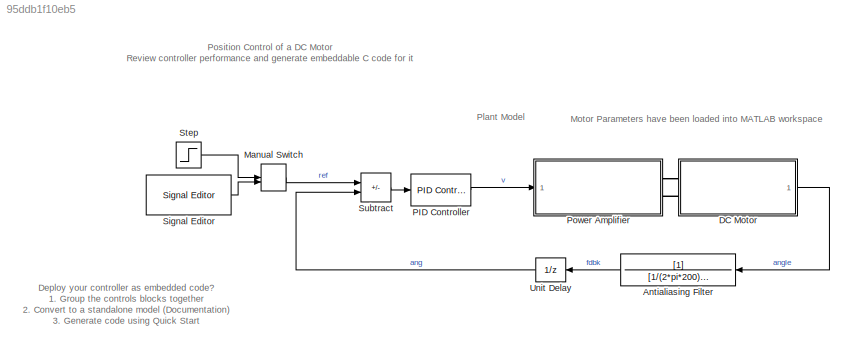
MODEL slx_95ddb1f10eb5
KIND model
CONFIG AbsTol = auto
CONFIG EnableMultiTasking = off
CONFIG FixedStep = auto
CONFIG MaxStep = auto
CONFIG MinStep = auto
CONFIG PostLoadFcn = load('dcmtr_params.mat');
CONFIG RelTol = 1e-3
CONFIG SampleTimeConstraint = Unconstrained
CONFIG SolverName = ode15s
CONFIG StartTime = 0.0
CONFIG StopTime = 10
BLOCK [TransferFcn] Antialiasing Filter
  Denominator = [1/(2*pi*200) 1]
BLOCK [SubSystem] DC Motor
  Ports = [0, 1, 0, 0, 0, 2]
  ReferencedSubsystem = dcmtr
  RequestExecContextInheritance = off
BLOCK [ManualSwitch] Manual Switch
  CurrentSetting = 0
BLOCK [Reference] PID Controller  REF=slpidlib/PID Controller
  AttributesFormatString = %<Name>\nSampleTime = %<SampleTime>
  Ports = [1, 1]
  SourceBlock = slpidlib/PID Controller
  SourceProductBaseCode = SL
  SourceType = PID 1dof
BLOCK [SubSystem] Power Amplifier
  Ports = [1, 0, 0, 0, 0, 0, 2]
  ReferencedSubsystem = powerAmp
  RequestExecContextInheritance = off
BLOCK [Reference] Signal Editor  REF=SignalEditorBlockLib/Signal Editor
  Ports = [0, 1]
  SourceBlock = SignalEditorBlockLib/Signal Editor
  SourceProductBaseCode = SL
  SourceType = SignalEditor
  UserDataPersistent = on
BLOCK [Step] Step
  After = pi/3
  SampleTime = Ts
  Time = 0
BLOCK [Sum] Subtract
  IconShape = rectangular
  Inputs = +-
  Ports = [2, 1]
BLOCK [UnitDelay] Unit Delay
  AttributesFormatString = %<Name>\nSampleTime = %<SampleTime>
  HasFrameUpgradeWarning = on
  SampleTime = Ts
ANNOTATION (root): Position Control of a DC Motor Review controller performance and generate embeddable C code for it
ANNOTATION (root): Deploy your controller as embedded code? 1. Group the controls blocks together 2. Convert to a standalone model ( Documentation ) 3. Generate code using Quick Start
ANNOTATION (root): Motor Parameters have been loaded into MATLAB workspace
ANNOTATION (root): Plant Model
LINE Antialiasing Filter:1 -> Unit Delay:1
LINE DC Motor:1 -> Antialiasing Filter:1
LINE Manual Switch:1 -> Subtract:1
LINE PID Controller:1 -> Power Amplifier:1
LINE Signal Editor:1 -> Manual Switch:2
LINE Step:1 -> Manual Switch:1
LINE Subtract:1 -> PID Controller:1
LINE Unit Delay:1 -> Subtract:2
PLINE DC Motor:LConn1 -- Power Amplifier:RConn1
PLINE DC Motor:LConn2 -- Power Amplifier:RConn2
